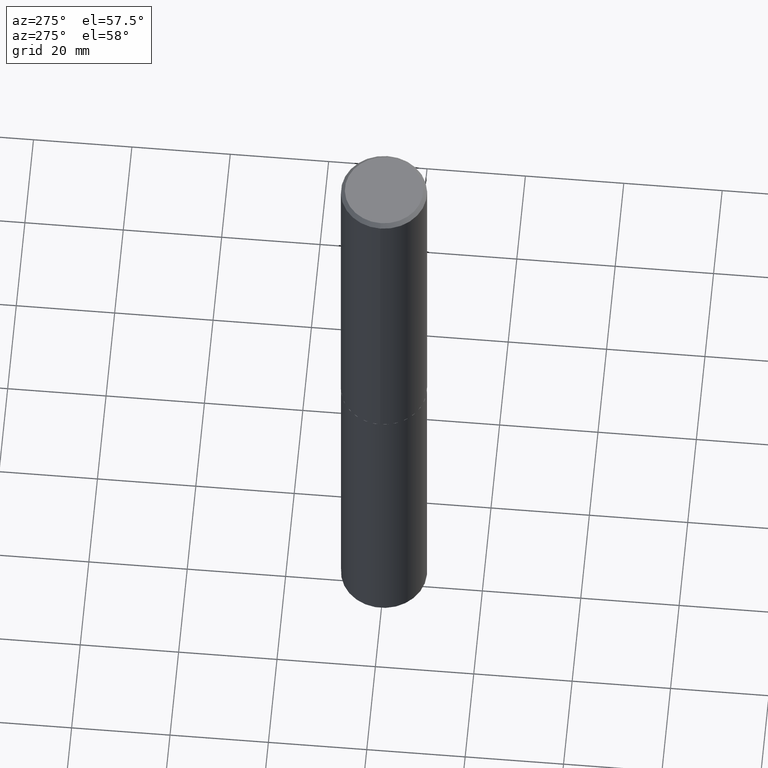
[diagram: clean part render]
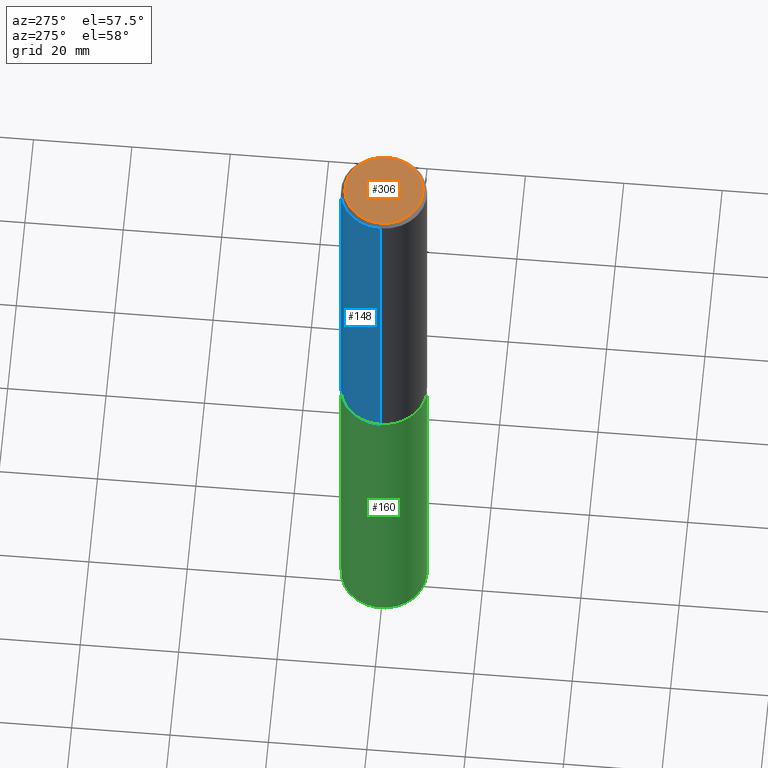
[diagram: same view with three faces highlighted in distinct colors, each labeled with its STEP entity id]
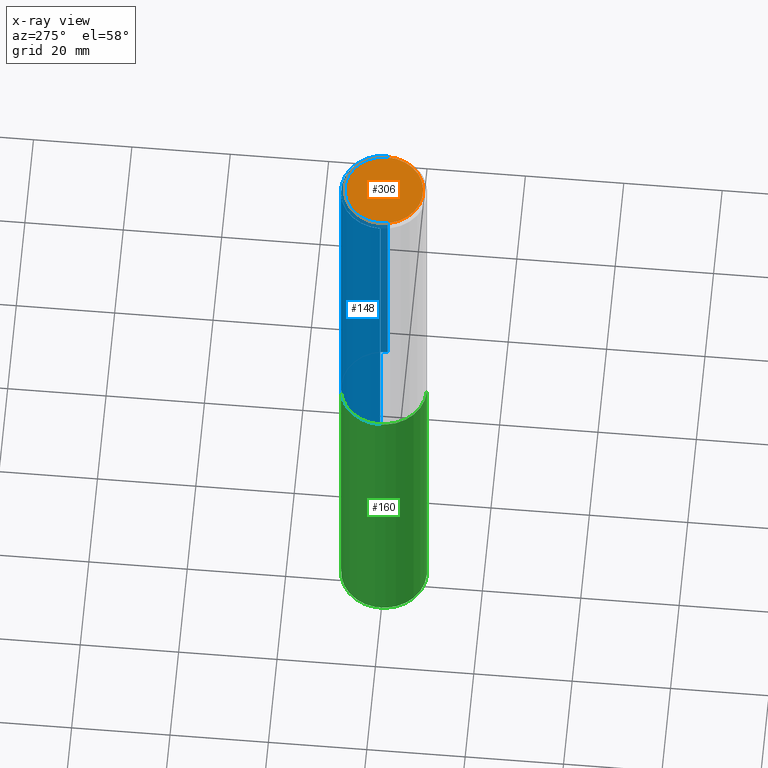
[diagram: x-ray of the same camera — body ghosted, the three highlighted faces saturated]
A machine part, auxiliary view with three faces highlighted in distinct colors.
The next image is the same camera in x-ray (body ghosted, the three faces saturated) — at least one of them is partly hidden behind the body in this view.
Their STEP definitions:

[orange] entity #306 — the highlighted planar face has unit normal (0, -0, -1).
#12 = CARTESIAN_POINT ( 'NONE',  ( -4.679430540483315256E-47, 6.680986634214010139E-33, 1.913510623667735920E-18 ) ) ;
#29 = EDGE_CURVE ( 'NONE', #239, #325, #292, .T. ) ;
#31 = DIRECTION ( 'NONE',  ( 2.438088387897960049E-29, -3.491481338843145188E-15, -1.000000000000000000 ) ) ;
#38 = CARTESIAN_POINT ( 'NONE',  ( -9.358861080966630512E-47, 1.336197326842802028E-32, 3.827021247335471839E-18 ) ) ;
#50 = AXIS2_PLACEMENT_3D ( 'NONE', #38, #220, #105 ) ;
#70 = CIRCLE ( 'NONE', #303, 0.3125000000000000000 ) ;
#75 = DIRECTION ( 'NONE',  ( -2.445468806185136597E-29, 3.491481338843145583E-15, 1.000000000000000000 ) ) ;
#105 = DIRECTION ( 'NONE',  ( 1.000000000000000000, -6.982962677686266711E-15, 4.876242311950517246E-29 ) ) ;
#114 = PLANE ( 'NONE',  #167 ) ;
#123 = EDGE_LOOP ( 'NONE', ( #327, #317 ) ) ;
#167 = AXIS2_PLACEMENT_3D ( 'NONE', #12, #31, #208 ) ;
#208 = DIRECTION ( 'NONE',  ( -1.000000000000000000, 6.982962677686265922E-15, -4.876176775795935793E-29 ) ) ;
#210 = CARTESIAN_POINT ( 'NONE',  ( -9.358861080966630512E-47, 1.336197326842802028E-32, 3.827021247335471839E-18 ) ) ;
#220 = DIRECTION ( 'NONE',  ( -2.445468806185136597E-29, 3.491481338843145583E-15, 1.000000000000000000 ) ) ;
#223 = CARTESIAN_POINT ( 'NONE',  ( -0.3125000000000000000, 2.236730232696381714E-15, 3.827021247320020488E-18 ) ) ;
#239 = VERTEX_POINT ( 'NONE', #223 ) ;
#250 = CARTESIAN_POINT ( 'NONE',  ( 0.3125000000000000000, -2.305655301438208344E-15, 3.827021247351164316E-18 ) ) ;
#255 = EDGE_CURVE ( 'NONE', #325, #239, #70, .T. ) ;
#292 = CIRCLE ( 'NONE', #50, 0.3125000000000000000 ) ;
#303 = AXIS2_PLACEMENT_3D ( 'NONE', #210, #75, #320 ) ;
#306 = ADVANCED_FACE ( 'NONE', ( #318 ), #114, .F. ) ;
#317 = ORIENTED_EDGE ( 'NONE', *, *, #255, .T. ) ;
#318 = FACE_OUTER_BOUND ( 'NONE', #123, .T. ) ;
#320 = DIRECTION ( 'NONE',  ( 1.000000000000000000, -6.982962677686266711E-15, 4.876242311950517246E-29 ) ) ;
#325 = VERTEX_POINT ( 'NONE', #250 ) ;
#327 = ORIENTED_EDGE ( 'NONE', *, *, #29, .T. ) ;

[blue] entity #148 — the highlighted cylindrical surface (partial cylindrical patch) has radius 8.7313 mm, axis along (-0, 0, 1).
#7 = EDGE_CURVE ( 'NONE', #53, #125, #204, .T. ) ;
#16 = AXIS2_PLACEMENT_3D ( 'NONE', #192, #67, #200 ) ;
#37 = DIRECTION ( 'NONE',  ( -2.445468806185136877E-29, 3.491481338843145188E-15, 1.000000000000000000 ) ) ;
#53 = VERTEX_POINT ( 'NONE', #194 ) ;
#67 = DIRECTION ( 'NONE',  ( -2.445468806185136597E-29, 3.491481338843145583E-15, 1.000000000000000000 ) ) ;
#79 = DIRECTION ( 'NONE',  ( 1.000000000000000000, -6.982962677686265922E-15, 0.000000000000000000 ) ) ;
#82 = CARTESIAN_POINT ( 'NONE',  ( 7.642090019328583394E-31, -1.091087918388487432E-16, -0.03125000000000012490 ) ) ;
#96 = DIRECTION ( 'NONE',  ( -2.445468806185136597E-29, 3.491481338843145583E-15, 1.000000000000000000 ) ) ;
#101 = DIRECTION ( 'NONE',  ( -2.445468806185136877E-29, 3.491481338843145188E-15, 1.000000000000000000 ) ) ;
#113 = LINE ( 'NONE', #173, #313 ) ;
#125 = VERTEX_POINT ( 'NONE', #252 ) ;
#148 = ADVANCED_FACE ( 'NONE', ( #366 ), #251, .T. ) ;
#173 = CARTESIAN_POINT ( 'NONE',  ( -0.3437500000000001665, 2.442490654175345572E-15, -1.690883937275124756E-29 ) ) ;
#176 = CARTESIAN_POINT ( 'NONE',  ( -0.3437500000000000000, -2.739304087835235330E-15, -0.03125000000000012490 ) ) ;
#185 = EDGE_LOOP ( 'NONE', ( #357, #295, #202, #332 ) ) ;
#192 = CARTESIAN_POINT ( 'NONE',  ( 7.182341883765743709E-29, -1.025448069218231586E-14, -2.936999999999999389 ) ) ;
#194 = CARTESIAN_POINT ( 'NONE',  ( 0.3437500000000003886, -1.265487411263697241E-14, -2.936999999999999389 ) ) ;
#195 = VECTOR ( 'NONE', #101, 39.37007874015748143 ) ;
#200 = DIRECTION ( 'NONE',  ( 1.000000000000000000, -6.982962677686266711E-15, 0.000000000000000000 ) ) ;
#202 = ORIENTED_EDGE ( 'NONE', *, *, #294, .F. ) ;
#204 = CIRCLE ( 'NONE', #16, 0.3437500000000003886 ) ;
#209 = DIRECTION ( 'NONE',  ( -2.445468806185136597E-29, 3.491481338843145583E-15, 1.000000000000000000 ) ) ;
#212 = AXIS2_PLACEMENT_3D ( 'NONE', #361, #96, #371 ) ;
#230 = EDGE_CURVE ( 'NONE', #53, #238, #333, .T. ) ;
#238 = VERTEX_POINT ( 'NONE', #337 ) ;
#245 = CARTESIAN_POINT ( 'NONE',  ( 0.3437500000000001665, -2.400393420454655365E-15, 1.676185766679853980E-29 ) ) ;
#251 = CYLINDRICAL_SURFACE ( 'NONE', #212, 0.3437500000000001665 ) ;
#252 = CARTESIAN_POINT ( 'NONE',  ( -0.3437500000000003886, -7.811990038006968315E-15, -2.936999999999999389 ) ) ;
#268 = AXIS2_PLACEMENT_3D ( 'NONE', #82, #209, #79 ) ;
#294 = EDGE_CURVE ( 'NONE', #238, #381, #335, .T. ) ;
#295 = ORIENTED_EDGE ( 'NONE', *, *, #331, .T. ) ;
#313 = VECTOR ( 'NONE', #37, 39.37007874015748143 ) ;
#331 = EDGE_CURVE ( 'NONE', #125, #381, #113, .T. ) ;
#332 = ORIENTED_EDGE ( 'NONE', *, *, #230, .F. ) ;
#333 = LINE ( 'NONE', #245, #195 ) ;
#335 = CIRCLE ( 'NONE', #268, 0.3437500000000000000 ) ;
#337 = CARTESIAN_POINT ( 'NONE',  ( 0.3437500000000000000, -2.509502212293502494E-15, -0.03125000000000012490 ) ) ;
#357 = ORIENTED_EDGE ( 'NONE', *, *, #7, .T. ) ;
#361 = CARTESIAN_POINT ( 'NONE',  ( 0.000000000000000000, 0.000000000000000000, 0.000000000000000000 ) ) ;
#366 = FACE_OUTER_BOUND ( 'NONE', #185, .T. ) ;
#371 = DIRECTION ( 'NONE',  ( 1.000000000000000000, -6.982962677686266711E-15, 4.876176775795936353E-29 ) ) ;
#381 = VERTEX_POINT ( 'NONE', #176 ) ;

[green] entity #160 — the highlighted cylindrical surface (partial cylindrical patch) has radius 8.7312 mm, axis along (-0, 0, 1).
#1 = CARTESIAN_POINT ( 'NONE',  ( -2.400393420454582001E-15, -0.3437500000000102141, -2.937499999999998224 ) ) ;
#8 = CARTESIAN_POINT ( 'NONE',  ( 7.183564618168836511E-29, -1.025622643285173815E-14, -2.937499999999999556 ) ) ;
#14 = CYLINDRICAL_SURFACE ( 'NONE', #150, 0.3437500000000000000 ) ;
#15 = FACE_OUTER_BOUND ( 'NONE', #18, .T. ) ;
#18 = EDGE_LOOP ( 'NONE', ( #298, #120, #62, #188 ) ) ;
#44 = EDGE_CURVE ( 'NONE', #153, #353, #65, .T. ) ;
#48 = DIRECTION ( 'NONE',  ( -6.982962677686265922E-15, -1.000000000000000000, 3.178877665354778874E-15 ) ) ;
#61 = CIRCLE ( 'NONE', #213, 0.3437500000000000000 ) ;
#62 = ORIENTED_EDGE ( 'NONE', *, *, #236, .T. ) ;
#65 = LINE ( 'NONE', #227, #267 ) ;
#69 = CARTESIAN_POINT ( 'NONE',  ( 1.383717794050239088E-28, -1.975302482264516971E-14, -5.657892465101803658 ) ) ;
#86 = VERTEX_POINT ( 'NONE', #339 ) ;
#87 = AXIS2_PLACEMENT_3D ( 'NONE', #8, #281, #136 ) ;
#95 = LINE ( 'NONE', #1, #190 ) ;
#107 = DIRECTION ( 'NONE',  ( -2.445828463241445570E-29, 3.490966289468102925E-15, 1.000000000000000000 ) ) ;
#120 = ORIENTED_EDGE ( 'NONE', *, *, #263, .T. ) ;
#121 = EDGE_CURVE ( 'NONE', #353, #352, #158, .T. ) ;
#134 = DIRECTION ( 'NONE',  ( -2.445828463241445851E-29, 3.490966289468102925E-15, 1.000000000000000000 ) ) ;
#136 = DIRECTION ( 'NONE',  ( -6.982962677686265922E-15, -1.000000000000000000, 3.178877665354778874E-15 ) ) ;
#150 = AXIS2_PLACEMENT_3D ( 'NONE', #321, #376, #48 ) ;
#153 = VERTEX_POINT ( 'NONE', #221 ) ;
#158 = CIRCLE ( 'NONE', #87, 0.3437500000000000000 ) ;
#160 = ADVANCED_FACE ( 'NONE', ( #15 ), #14, .T. ) ;
#188 = ORIENTED_EDGE ( 'NONE', *, *, #121, .F. ) ;
#190 = VECTOR ( 'NONE', #134, 39.37007874015748143 ) ;
#206 = CARTESIAN_POINT ( 'NONE',  ( -2.400393420454582001E-15, -0.3437500000000102141, -2.937499999999998224 ) ) ;
#213 = AXIS2_PLACEMENT_3D ( 'NONE', #69, #107, #285 ) ;
#221 = CARTESIAN_POINT ( 'NONE',  ( 2.442490654175483228E-15, 0.3437499999999802935, -5.657892465101804547 ) ) ;
#224 = CARTESIAN_POINT ( 'NONE',  ( 2.442490654175483228E-15, 0.3437499999999897304, -2.937500000000000444 ) ) ;
#227 = CARTESIAN_POINT ( 'NONE',  ( 2.442490654175415781E-15, 0.3437499999999897304, -2.937500000000000444 ) ) ;
#236 = EDGE_CURVE ( 'NONE', #86, #352, #95, .T. ) ;
#263 = EDGE_CURVE ( 'NONE', #153, #86, #61, .T. ) ;
#267 = VECTOR ( 'NONE', #341, 39.37007874015748143 ) ;
#281 = DIRECTION ( 'NONE',  ( -2.445828463241445570E-29, 3.490966289468102925E-15, 1.000000000000000000 ) ) ;
#285 = DIRECTION ( 'NONE',  ( -6.982962677686265922E-15, -1.000000000000000000, 3.178877665354778874E-15 ) ) ;
#298 = ORIENTED_EDGE ( 'NONE', *, *, #44, .F. ) ;
#321 = CARTESIAN_POINT ( 'NONE',  ( 7.183564618168836511E-29, -1.025622643285173815E-14, -2.937499999999999556 ) ) ;
#339 = CARTESIAN_POINT ( 'NONE',  ( -2.400393420454516131E-15, -0.3437500000000198730, -5.657892465101801882 ) ) ;
#341 = DIRECTION ( 'NONE',  ( -2.445828463241445851E-29, 3.490966289468102925E-15, 1.000000000000000000 ) ) ;
#352 = VERTEX_POINT ( 'NONE', #206 ) ;
#353 = VERTEX_POINT ( 'NONE', #224 ) ;
#376 = DIRECTION ( 'NONE',  ( -2.445828463241445570E-29, 3.490966289468102925E-15, 1.000000000000000000 ) ) ;